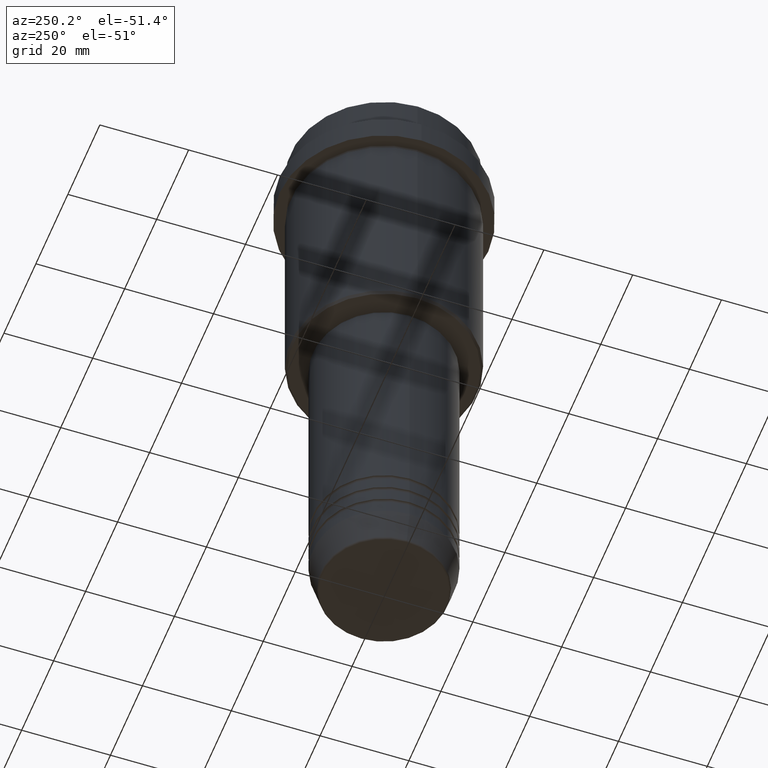
[diagram: clean part render]
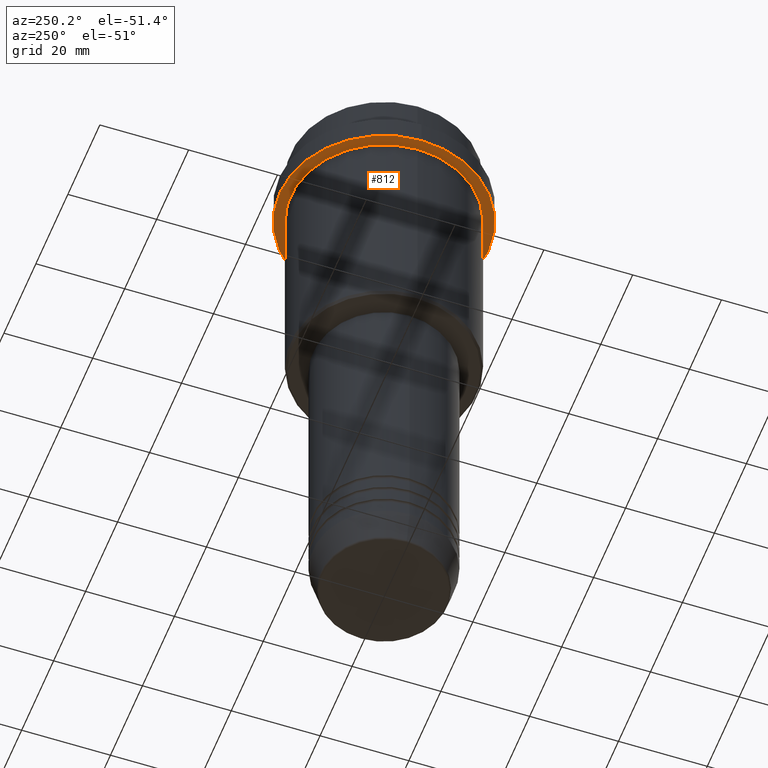
[diagram: same view with one face highlighted and labeled with its STEP entity id]
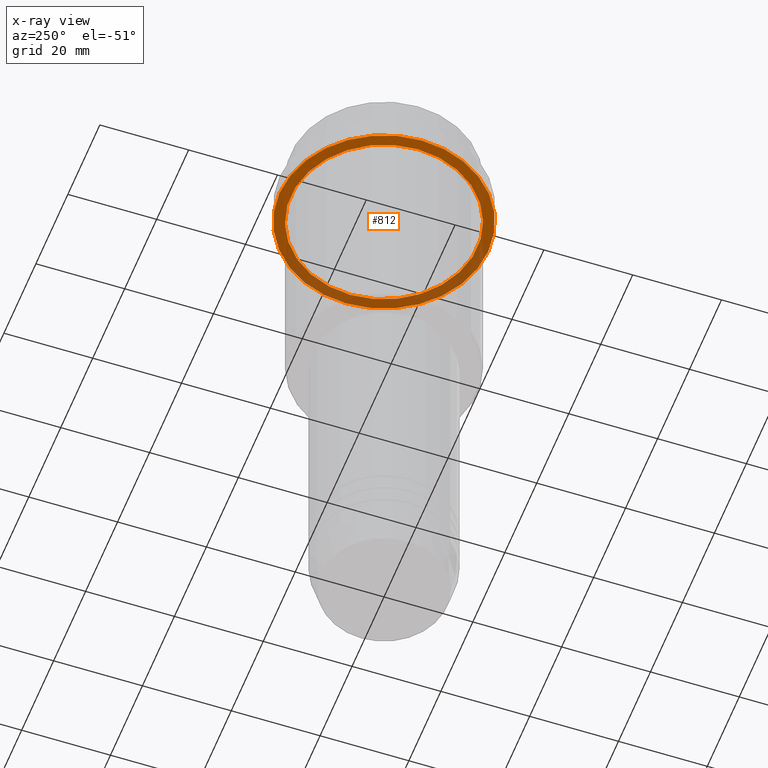
[diagram: x-ray of the same camera — body ghosted, the highlighted face saturated]
A machine part, auxiliary view. The second image highlights one B-rep face of the part: STEP entity #812.
The next image is the same camera in x-ray: the body ghosted, the highlighted face saturated — about 39% of this face is hidden behind the body in this view.
In plain terms, the highlighted planar face has unit normal (0, 0, -1).
Its self-contained STEP definition (entity closure, byte-faithful):
#57 = DIRECTION ( 'NONE',  ( 0.000000000000000000, 0.000000000000000000, -1.000000000000000000 ) ) ;
#85 = ORIENTED_EDGE ( 'NONE', *, *, #687, .T. ) ;
#138 = AXIS2_PLACEMENT_3D ( 'NONE', #857, #1297, #548 ) ;
#174 = DIRECTION ( 'NONE',  ( -1.000000000000000000, 0.000000000000000000, -0.000000000000000000 ) ) ;
#197 = ORIENTED_EDGE ( 'NONE', *, *, #565, .F. ) ;
#270 = CIRCLE ( 'NONE', #507, 23.50000000000000355 ) ;
#329 = CARTESIAN_POINT ( 'NONE',  ( 23.50000000000000355, 0.000000000000000000, -15.00000000000000000 ) ) ;
#380 = DIRECTION ( 'NONE',  ( -1.000000000000000000, 0.000000000000000000, 0.000000000000000000 ) ) ;
#457 = CIRCLE ( 'NONE', #1374, 20.99999999999999289 ) ;
#463 = VERTEX_POINT ( 'NONE', #1395 ) ;
#473 = CARTESIAN_POINT ( 'NONE',  ( 0.000000000000000000, 0.000000000000000000, -15.00000000000000000 ) ) ;
#487 = DIRECTION ( 'NONE',  ( -0.000000000000000000, -0.000000000000000000, 1.000000000000000000 ) ) ;
#507 = AXIS2_PLACEMENT_3D ( 'NONE', #473, #1132, #922 ) ;
#513 = PLANE ( 'NONE',  #774 ) ;
#548 = DIRECTION ( 'NONE',  ( -1.000000000000000000, 0.000000000000000000, 0.000000000000000000 ) ) ;
#565 = EDGE_CURVE ( 'NONE', #1031, #1196, #1071, .T. ) ;
#588 = DIRECTION ( 'NONE',  ( 1.000000000000000000, 0.000000000000000000, 0.000000000000000000 ) ) ;
#593 = AXIS2_PLACEMENT_3D ( 'NONE', #1253, #906, #588 ) ;
#627 = CARTESIAN_POINT ( 'NONE',  ( 0.000000000000000000, 23.50000000000000355, -15.00000000000000178 ) ) ;
#649 = EDGE_CURVE ( 'NONE', #463, #1317, #457, .T. ) ;
#687 = EDGE_CURVE ( 'NONE', #1317, #463, #910, .T. ) ;
#774 = AXIS2_PLACEMENT_3D ( 'NONE', #627, #57, #174 ) ;
#800 = CARTESIAN_POINT ( 'NONE',  ( 0.000000000000000000, 0.000000000000000000, -15.00000000000000178 ) ) ;
#812 = ADVANCED_FACE ( 'NONE', ( #1156, #1368 ), #513, .T. ) ;
#832 = CARTESIAN_POINT ( 'NONE',  ( -23.50000000000000711, 2.877919977996281109E-15, -15.00000000000000000 ) ) ;
#857 = CARTESIAN_POINT ( 'NONE',  ( 0.000000000000000000, 0.000000000000000000, -15.00000000000000178 ) ) ;
#906 = DIRECTION ( 'NONE',  ( -0.000000000000000000, -0.000000000000000000, 1.000000000000000000 ) ) ;
#910 = CIRCLE ( 'NONE', #138, 20.99999999999999289 ) ;
#922 = DIRECTION ( 'NONE',  ( 1.000000000000000000, 0.000000000000000000, 0.000000000000000000 ) ) ;
#974 = CARTESIAN_POINT ( 'NONE',  ( 20.99999999999999289, 2.571758278209440872E-15, -15.00000000000000178 ) ) ;
#1022 = ORIENTED_EDGE ( 'NONE', *, *, #1148, .F. ) ;
#1031 = VERTEX_POINT ( 'NONE', #329 ) ;
#1071 = CIRCLE ( 'NONE', #593, 23.50000000000000355 ) ;
#1132 = DIRECTION ( 'NONE',  ( -0.000000000000000000, -0.000000000000000000, 1.000000000000000000 ) ) ;
#1148 = EDGE_CURVE ( 'NONE', #1196, #1031, #270, .T. ) ;
#1156 = FACE_BOUND ( 'NONE', #1378, .T. ) ;
#1196 = VERTEX_POINT ( 'NONE', #832 ) ;
#1253 = CARTESIAN_POINT ( 'NONE',  ( 0.000000000000000000, 0.000000000000000000, -15.00000000000000000 ) ) ;
#1290 = EDGE_LOOP ( 'NONE', ( #197, #1022 ) ) ;
#1297 = DIRECTION ( 'NONE',  ( -0.000000000000000000, -0.000000000000000000, 1.000000000000000000 ) ) ;
#1317 = VERTEX_POINT ( 'NONE', #974 ) ;
#1345 = ORIENTED_EDGE ( 'NONE', *, *, #649, .T. ) ;
#1368 = FACE_OUTER_BOUND ( 'NONE', #1290, .T. ) ;
#1374 = AXIS2_PLACEMENT_3D ( 'NONE', #800, #487, #380 ) ;
#1378 = EDGE_LOOP ( 'NONE', ( #1345, #85 ) ) ;
#1395 = CARTESIAN_POINT ( 'NONE',  ( -20.99999999999999289, 0.000000000000000000, -15.00000000000000178 ) ) ;